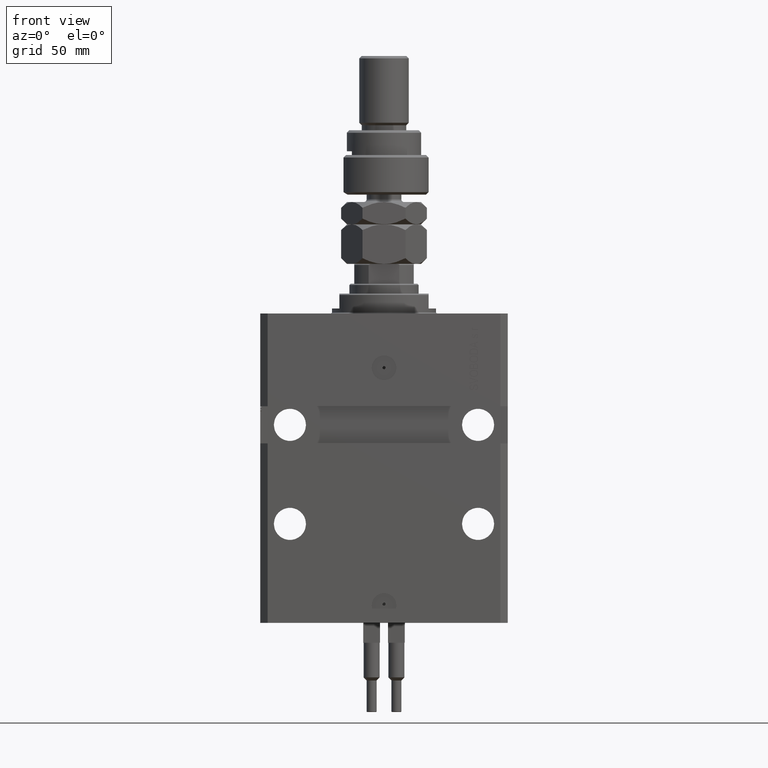
[diagram: clean part render]
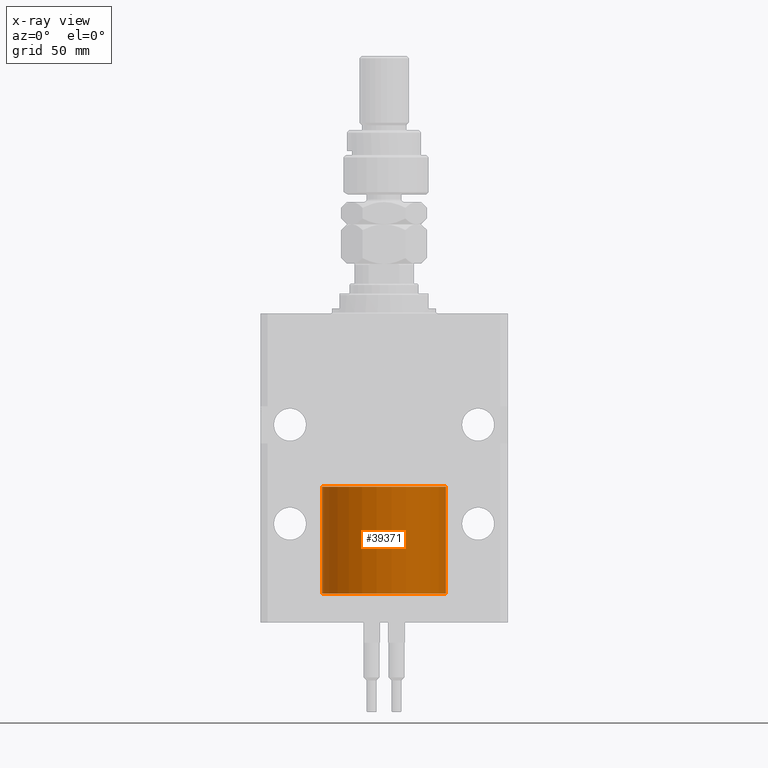
[diagram: x-ray — body ghosted, one internal face saturated and labeled with its STEP entity id]
A machine part, front view, then the same camera in x-ray: the body is ghosted and one INTERNAL B-rep face — a face not visible from any outside direction — is saturated and labeled: STEP entity #39371.
In plain terms, the highlighted cylindrical surface (partial cylindrical patch) has radius 25 mm, axis along (-0, -0, -1).
Its self-contained STEP definition (entity closure, byte-faithful):
#6392 = DIRECTION ( 'NONE',  ( 0.000000000000000000, 0.000000000000000000, 1.000000000000000000 ) ) ;
#8038 = DIRECTION ( 'NONE',  ( -0.000000000000000000, -0.000000000000000000, -1.000000000000000000 ) ) ;
#10796 = CARTESIAN_POINT ( 'NONE',  ( 25.00000000000000000, 3.061616997868383043E-15, 43.10000000000000142 ) ) ;
#12113 = EDGE_LOOP ( 'NONE', ( #31791, #19527, #42156, #50287 ) ) ;
#19527 = ORIENTED_EDGE ( 'NONE', *, *, #37406, .F. ) ;
#19563 = EDGE_CURVE ( 'NONE', #28920, #26958, #26071, .T. ) ;
#26071 = CIRCLE ( 'NONE', #34460, 25.00000000000000000 ) ;
#26315 = CARTESIAN_POINT ( 'NONE',  ( 0.000000000000000000, 0.000000000000000000, 0.000000000000000000 ) ) ;
#26428 = CARTESIAN_POINT ( 'NONE',  ( 25.00000000000000000, 3.061616997868383043E-15, 43.10000000000000142 ) ) ;
#26958 = VERTEX_POINT ( 'NONE', #43703 ) ;
#27234 = CARTESIAN_POINT ( 'NONE',  ( 0.000000000000000000, 0.000000000000000000, 43.10000000000000142 ) ) ;
#28920 = VERTEX_POINT ( 'NONE', #39096 ) ;
#29551 = CARTESIAN_POINT ( 'NONE',  ( -25.00000000000000000, 0.000000000000000000, 43.10000000000000142 ) ) ;
#30081 = DIRECTION ( 'NONE',  ( -0.000000000000000000, -0.000000000000000000, -1.000000000000000000 ) ) ;
#31791 = ORIENTED_EDGE ( 'NONE', *, *, #43449, .F. ) ;
#32193 = AXIS2_PLACEMENT_3D ( 'NONE', #27234, #42726, #38800 ) ;
#33492 = LINE ( 'NONE', #29551, #41778 ) ;
#33658 = DIRECTION ( 'NONE',  ( 1.000000000000000000, 0.000000000000000000, 0.000000000000000000 ) ) ;
#34460 = AXIS2_PLACEMENT_3D ( 'NONE', #26315, #6392, #33658 ) ;
#35055 = FACE_OUTER_BOUND ( 'NONE', #12113, .T. ) ;
#35816 = DIRECTION ( 'NONE',  ( -1.000000000000000000, 0.000000000000000000, 0.000000000000000000 ) ) ;
#37406 = EDGE_CURVE ( 'NONE', #49154, #49684, #41413, .T. ) ;
#38800 = DIRECTION ( 'NONE',  ( 1.000000000000000000, 0.000000000000000000, 0.000000000000000000 ) ) ;
#39096 = CARTESIAN_POINT ( 'NONE',  ( -25.00000000000000000, 0.000000000000000000, 0.000000000000000000 ) ) ;
#39371 = ADVANCED_FACE ( 'NONE', ( #35055 ), #43704, .T. ) ;
#39695 = AXIS2_PLACEMENT_3D ( 'NONE', #47382, #8038, #35816 ) ;
#41413 = CIRCLE ( 'NONE', #32193, 25.00000000000000000 ) ;
#41778 = VECTOR ( 'NONE', #30081, 1000.000000000000000 ) ;
#42156 = ORIENTED_EDGE ( 'NONE', *, *, #50744, .T. ) ;
#42726 = DIRECTION ( 'NONE',  ( 0.000000000000000000, 0.000000000000000000, 1.000000000000000000 ) ) ;
#43449 = EDGE_CURVE ( 'NONE', #49684, #26958, #50313, .T. ) ;
#43703 = CARTESIAN_POINT ( 'NONE',  ( 25.00000000000000000, 3.061616997868383043E-15, 0.000000000000000000 ) ) ;
#43704 = CYLINDRICAL_SURFACE ( 'NONE', #39695, 25.00000000000000000 ) ;
#47382 = CARTESIAN_POINT ( 'NONE',  ( 0.000000000000000000, 0.000000000000000000, 43.10000000000000142 ) ) ;
#47858 = CARTESIAN_POINT ( 'NONE',  ( -25.00000000000000000, 0.000000000000000000, 43.10000000000000142 ) ) ;
#49045 = VECTOR ( 'NONE', #51083, 1000.000000000000000 ) ;
#49154 = VERTEX_POINT ( 'NONE', #47858 ) ;
#49684 = VERTEX_POINT ( 'NONE', #10796 ) ;
#50287 = ORIENTED_EDGE ( 'NONE', *, *, #19563, .T. ) ;
#50313 = LINE ( 'NONE', #26428, #49045 ) ;
#50744 = EDGE_CURVE ( 'NONE', #49154, #28920, #33492, .T. ) ;
#51083 = DIRECTION ( 'NONE',  ( -0.000000000000000000, -0.000000000000000000, -1.000000000000000000 ) ) ;